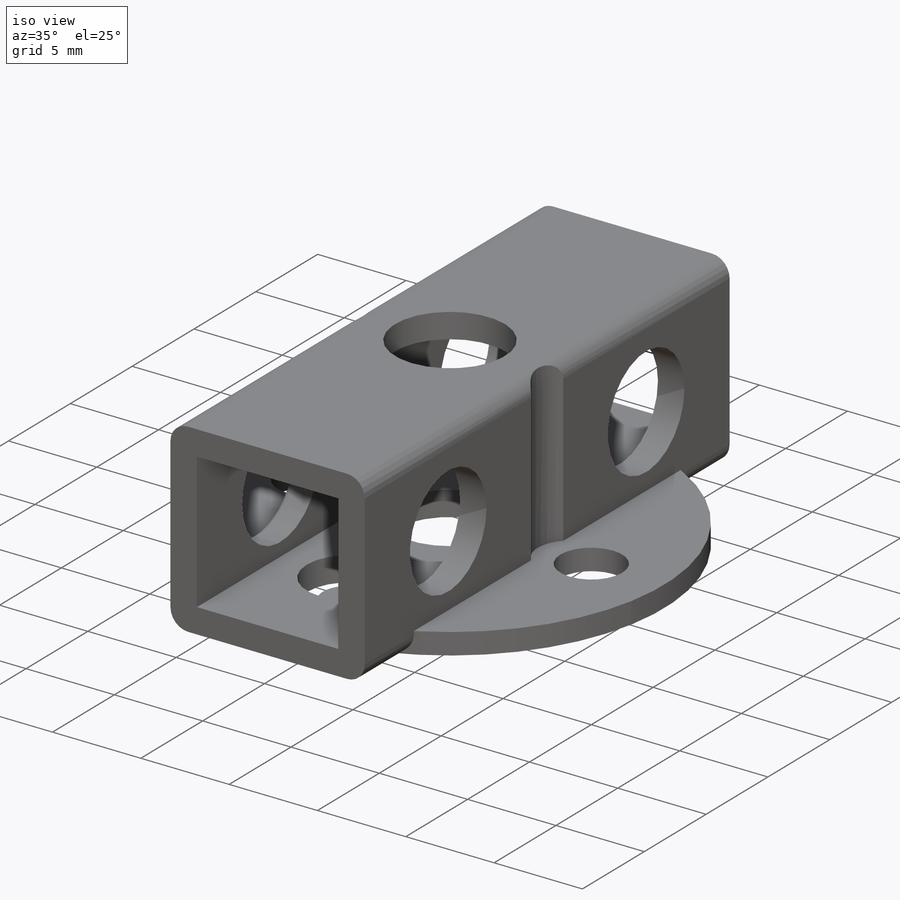
[diagram: iso view]
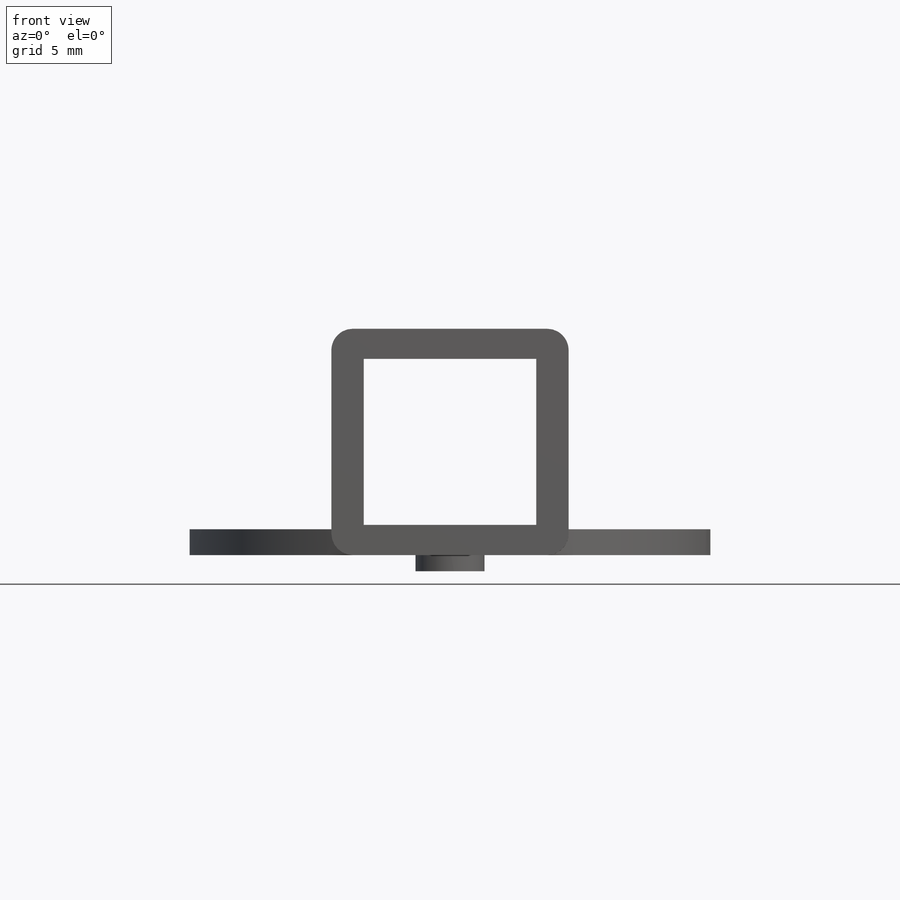
[diagram: front view]
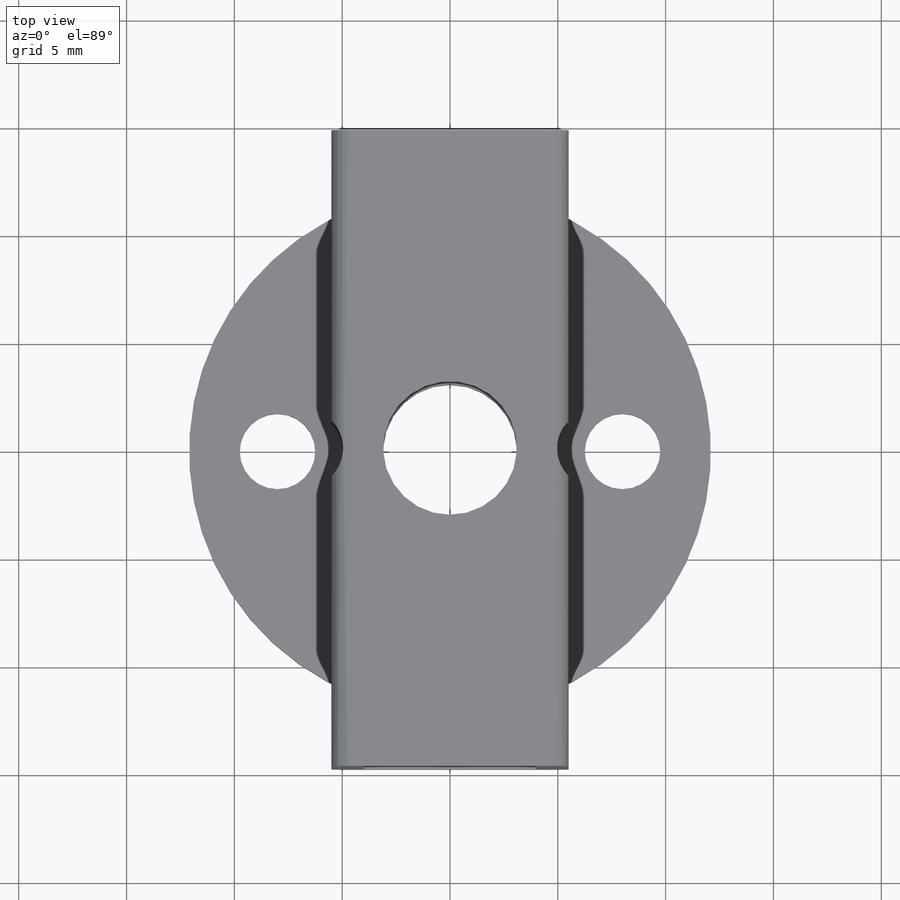
[diagram: top view]
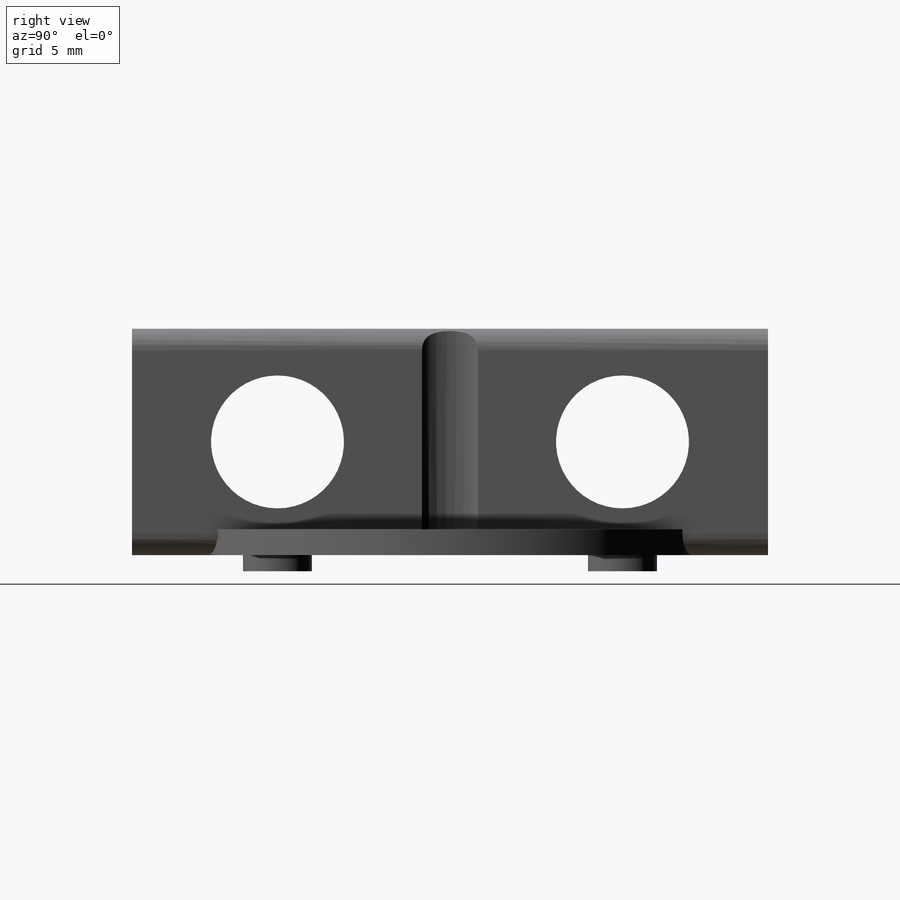
[diagram: right view]
SOLIDWORKS PART (.sldprt)
format: sldprt  version: not decoded by parser v0  size: 455,680 bytes
history: native  units: mm
features: sketch x24, hole x7, plane x6, extrude x3, cut_extrude x3, revolve x2, fillet x2, material x1 (+11 scaffold rows collapsed)
feature tree (59):
  scaffold x11  (default folders/planes/origin — collapsed)
  material  "ABS"
  plane  "Plane1"
  sketch  "Sketch1"
  extrude  "Boss-Extrude1"  Depth=10.5mm
  sketch  "Sketch2"
  extrude  "Boss-Extrude2"  Depth=1.2mm
  sketch  "Sketch3"
  cut_extrude  "Cut-Extrude1"  Depth=9.3mm
  sketch  "Sketch4"
  extrude  "Boss-Extrude3"  Depth=1.2mm
  sketch  "Sketch5"
  cut_extrude  "Cut-Extrude2"  Depth=9.3mm
  sketch  "Sketch6"
  cut_extrude  "Cut-Extrude3"  Depth=29.5mm
  hole  "Ø5.0 (5) Diameter Hole1"  Diameter=5mm Depth=1.4mm
  sketch  "Sketch8"
  sketch  "Sketch7"  dims[hole-wizard template sketch: 60 standard entries collapsed; hole parameters kept: c18.Thru Hole Depth=1.4mm]
  hole  "Ø5.0 (5) Diameter Hole2"  Diameter=5mm Depth=1.4mm
  sketch  "Sketch10"
  sketch  "Sketch9"  dims[hole-wizard template sketch: 60 standard entries collapsed; hole parameters kept: c18.Thru Hole Depth=1.4mm]
  plane  "Plane2"
  sketch  "Sketch11"
  revolve  "Revolve1"  Angle=360deg
  plane  "Plane3"  Offset=16mm
  sketch  "Sketch12"
  revolve  "Revolve2"  Angle=360deg
  hole  "Ø6.2 (6.2) Diameter Hole1"  Diameter=6.2mm Depth=1.4mm
  sketch  "Sketch14"
  sketch  "Sketch13"  dims[hole-wizard template sketch: 59 standard entries collapsed; hole parameters kept: c18.Thru Hole Dia.=6.2mm c18.Thru Hole Depth=1.4mm]
  hole  "Ø3.5 (3.5) Diameter Hole1"  Diameter=3.5mm Depth=1.2mm
  sketch  "Sketch16"
  sketch  "Sketch15"  dims[hole-wizard template sketch: 60 standard entries collapsed; hole parameters kept: c18.Thru Hole Depth=1.2mm]
  hole  "Ø6.2 (6.2) Diameter Hole2"  Diameter=6.2mm Depth=1.5mm
  sketch  "Sketch18"
  sketch  "Sketch17"  dims[hole-wizard template sketch: 59 standard entries collapsed; hole parameters kept: c18.Thru Hole Dia.=6.2mm c18.Thru Hole Depth=1.5mm]
  hole  "Ø6.2 (6.2) Diameter Hole3"  Diameter=6.2mm Depth=1.5mm
  sketch  "Sketch20"
  sketch  "Sketch19"  dims[hole-wizard template sketch: 59 standard entries collapsed; hole parameters kept: c18.Thru Hole Dia.=6.2mm c18.Thru Hole Depth=1.5mm]
  hole  "Ø6.2 (6.2) Diameter Hole4"  Diameter=6.2mm Depth=1.4mm
  sketch  "Sketch22"
  sketch  "Sketch21"  dims[hole-wizard template sketch: 59 standard entries collapsed; hole parameters kept: c18.Thru Hole Dia.=6.2mm c18.Thru Hole Depth=1.4mm]
  plane  "Plane4"  Offset=12mm
  sketch  "Sketch23"
  plane  "Plane5"  Offset=4mm
  sketch  "Sketch24"
  plane  "Plane6"  Offset=4mm
  fillet  "Fillet1"  Radius=1mm
  fillet  "Fillet3"  Radius=0.25mm
decode coverage: 24 of 41 modeling features carry decoded parameters
note: ~ marks probable driven/reference dimensions
summary: Diameter pulled from absorbed wizard sketch
note: suppression state not decoded; provenance and decode notes live in map.json
